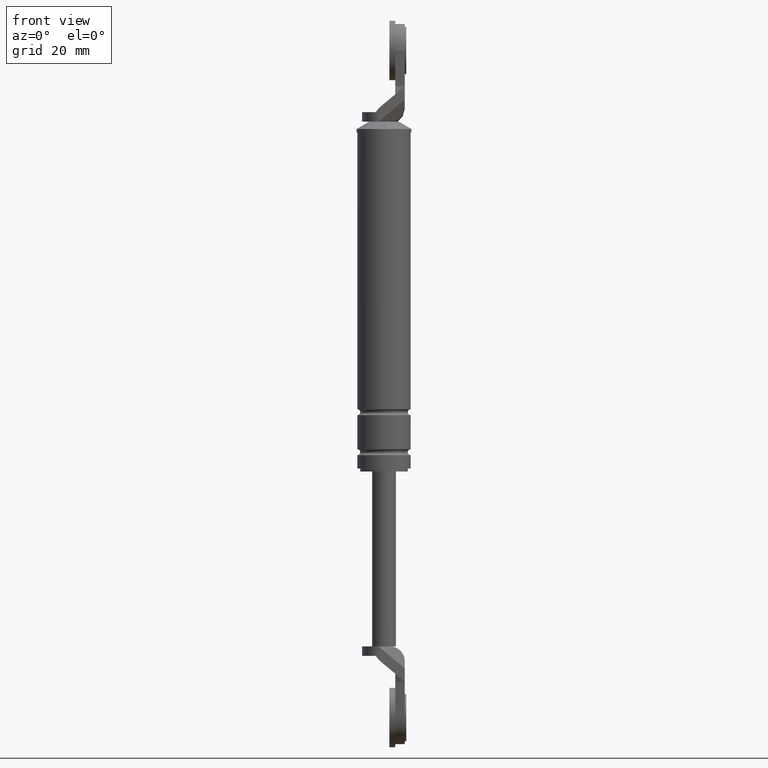
[diagram: clean part render]
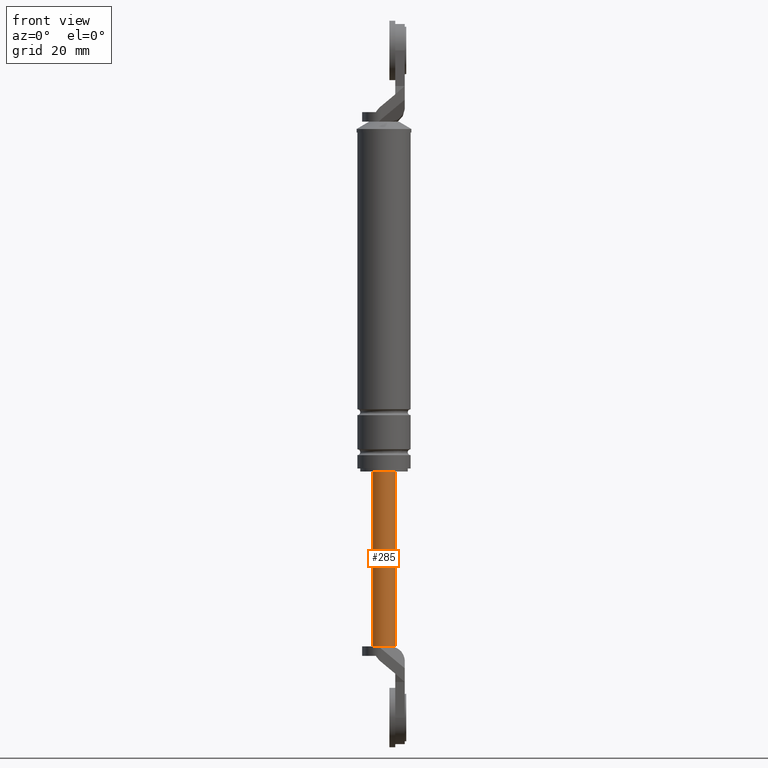
[diagram: same view with one face highlighted and labeled with its STEP entity id]
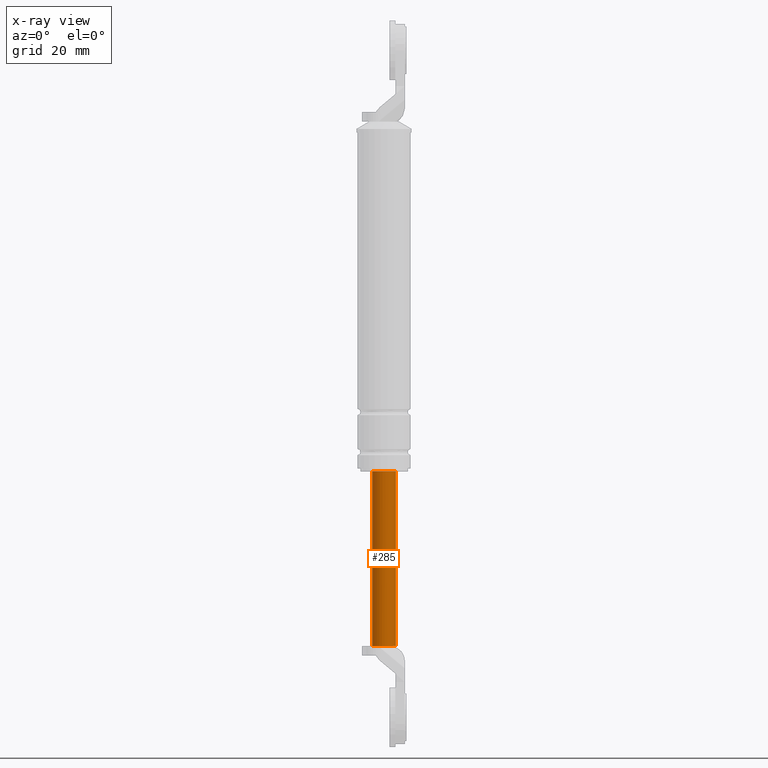
[diagram: x-ray of the same camera — body ghosted, the highlighted face saturated]
A machine part, front view. The second image highlights one B-rep face of the part: STEP entity #285.
The next image is the same camera in x-ray: the body ghosted, the highlighted face saturated — about 0% of this face is hidden behind the body in this view.
In plain terms, the highlighted cylindrical surface (edge-blend (fillet) strip) has radius 4 mm, axis along (0, 0, 1).
Its self-contained STEP definition (entity closure, byte-faithful):
#285=ADVANCED_FACE('',(#1107),#1106,.T.);
#1106=CYLINDRICAL_SURFACE('',#1760,4.00000000000E+000);
#1107=FACE_OUTER_BOUND('',#1761,.T.);
#1757=CARTESIAN_POINT('',(0.00000000000E+000,3.58204186421E-014,0.00000000000E+000));
#1758=DIRECTION('',(-0.00000000000E+000,-0.00000000000E+000,1.00000000000E+000));
#1759=DIRECTION('',(1.00000000000E+000,-0.00000000000E+000,-0.00000000000E+000));
#1760=AXIS2_PLACEMENT_3D('',#1757,#1758,#1759);
#1761=EDGE_LOOP('',(#2153,#2154,#2155,#2156,#2157));
#2153=ORIENTED_EDGE('',*,*,#2341,.F.);
#2154=ORIENTED_EDGE('',*,*,#2339,.F.);
#2155=ORIENTED_EDGE('',*,*,#2354,.T.);
#2156=ORIENTED_EDGE('',*,*,#2349,.T.);
#2157=ORIENTED_EDGE('',*,*,#2355,.F.);
#2339=EDGE_CURVE('',#3556,#3543,#3563,.T.);
#2341=EDGE_CURVE('',#3543,#3575,#3576,.T.);
#2349=EDGE_CURVE('',#3626,#3627,#3628,.T.);
#2354=EDGE_CURVE('',#3556,#3626,#3658,.T.);
#2355=EDGE_CURVE('',#3575,#3627,#3664,.T.);
#3543=VERTEX_POINT('',#4392);
#3556=VERTEX_POINT('',#4400);
#3563=CIRCLE('',#4408,4.00000000000E+000);
#3575=VERTEX_POINT('',#4412);
#3576=CIRCLE('',#4416,4.00000000000E+000);
#3626=VERTEX_POINT('',#4444);
#3627=VERTEX_POINT('',#4445);
#3628=CIRCLE('',#4449,4.00000000000E+000);
#3658=(BOUNDED_CURVE() B_SPLINE_CURVE(1,(#4462,#4463),.UNSPECIFIED.,.F.,.F.) B_SPLINE_CURVE_WITH_KNOTS((2,2),(8.33333332085E-002,9.16666666222E-001),.UNSPECIFIED.) CURVE() GEOMETRIC_REPRESENTATION_ITEM() RATIONAL_B_SPLINE_CURVE((1.00000000000E+000,1.00000000000E+000)) REPRESENTATION_ITEM('') );
#3664=(BOUNDED_CURVE() B_SPLINE_CURVE(1,(#4464,#4465),.UNSPECIFIED.,.F.,.F.) B_SPLINE_CURVE_WITH_KNOTS((2,2),(8.33333333333E-002,9.16666666667E-001),.UNSPECIFIED.) CURVE() GEOMETRIC_REPRESENTATION_ITEM() RATIONAL_B_SPLINE_CURVE((7.50000000000E-001,7.50000000000E-001)) REPRESENTATION_ITEM('') );
#4392=CARTESIAN_POINT('',(2.00000000000E+000,-3.46410161514E+000,-8.80000150000E+001));
#4400=CARTESIAN_POINT('',(3.99999999999E+000,-7.42202590949E-006,-8.80000150000E+001));
#4405=CARTESIAN_POINT('',(-1.38555833473E-013,0.00000000000E+000,-8.80000150000E+001));
#4406=DIRECTION('',(0.00000000000E+000,0.00000000000E+000,-1.00000000000E+000));
#4407=DIRECTION('',(5.00000000000E-001,8.66025403784E-001,0.00000000000E+000));
#4408=AXIS2_PLACEMENT_3D('',#4405,#4406,#4407);
#4412=CARTESIAN_POINT('',(-4.00000000000E+000,-4.44089209850E-016,-8.80000150000E+001));
#4413=CARTESIAN_POINT('',(-1.38555833473E-013,0.00000000000E+000,-8.80000150000E+001));
#4414=DIRECTION('',(0.00000000000E+000,0.00000000000E+000,-1.00000000000E+000));
#4415=DIRECTION('',(1.00000000000E+000,-0.00000000000E+000,-0.00000000000E+000));
#4416=AXIS2_PLACEMENT_3D('',#4413,#4414,#4415);
#4444=CARTESIAN_POINT('',(4.00000000000E+000,3.64153152077E-014,-2.90000150000E+001));
#4445=CARTESIAN_POINT('',(-4.00000000000E+000,3.58204186421E-014,-2.90000150000E+001));
#4446=CARTESIAN_POINT('',(0.00000000000E+000,3.58204186421E-014,-2.90000150000E+001));
#4447=DIRECTION('',(-0.00000000000E+000,0.00000000000E+000,-1.00000000000E+000));
#4448=DIRECTION('',(-1.00000000000E+000,-1.22460635382E-016,0.00000000000E+000));
#4449=AXIS2_PLACEMENT_3D('',#4446,#4447,#4448);
#4462=CARTESIAN_POINT('',(4.00000000000E+000,3.58204186421E-014,-8.80000150088E+001));
#4463=CARTESIAN_POINT('',(4.00000000000E+000,3.58204186421E-014,-2.90000150315E+001));
#4464=CARTESIAN_POINT('',(-4.00000000000E+000,3.58231962612E-014,-8.80000150000E+001));
#4465=CARTESIAN_POINT('',(-4.00000000000E+000,3.58231962612E-014,-2.90000150000E+001));